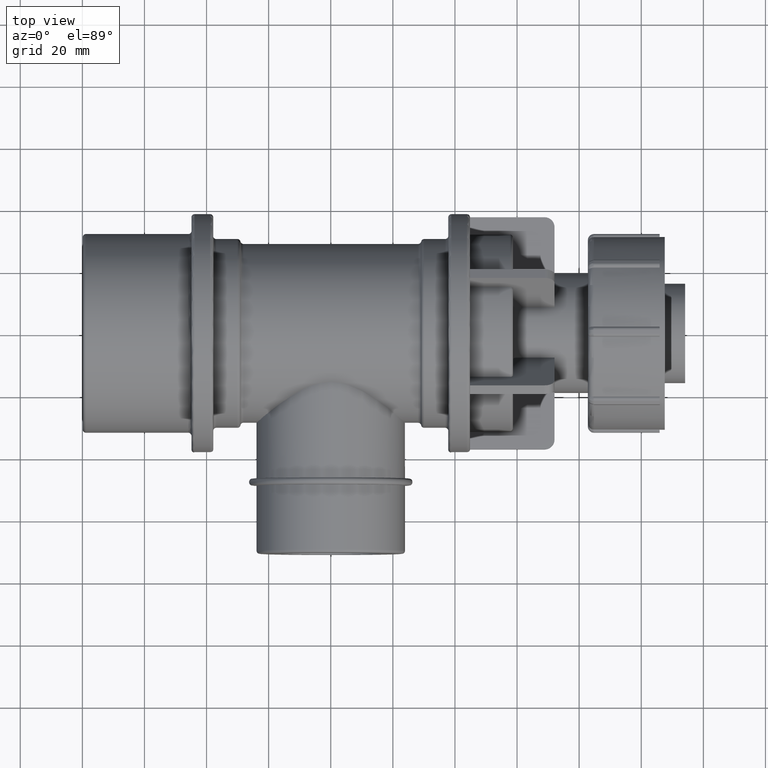
[diagram: clean part render]
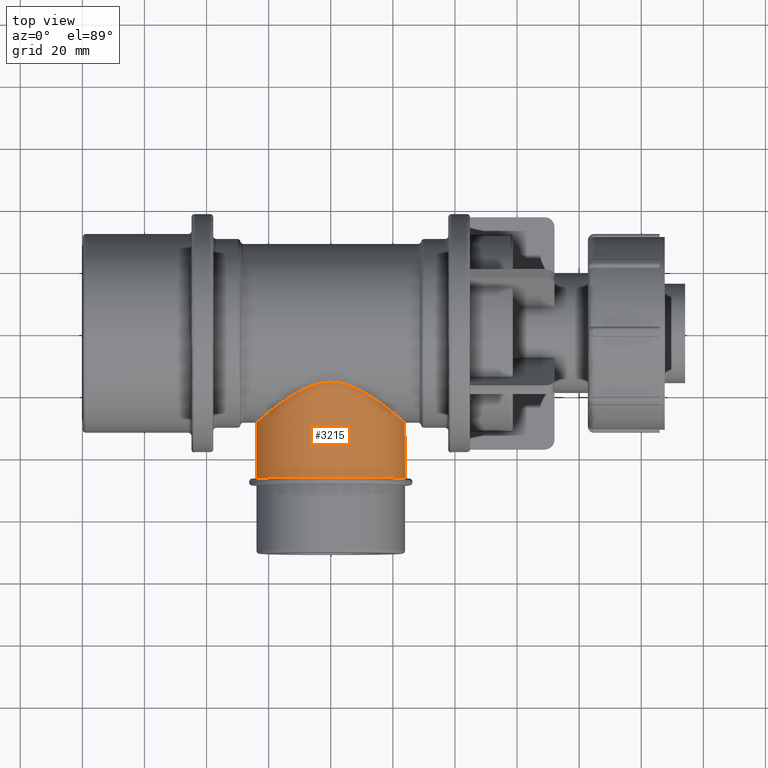
[diagram: same view with one face highlighted and labeled with its STEP entity id]
A machine part, top view. The second image highlights one B-rep face of the part: STEP entity #3215.
In plain terms, the highlighted cylindrical surface (bore or boss wall) has radius 23.9015 mm, axis along (-0, 1, 0).
Its self-contained STEP definition (entity closure, byte-faithful):
#707=CIRCLE('',#3595,23.9015);
#796=FACE_BOUND('',#1279,.T.);
#1008=FACE_OUTER_BOUND('',#1278,.T.);
#1278=EDGE_LOOP('',(#2932));
#1279=EDGE_LOOP('',(#2933));
#1332=B_SPLINE_CURVE_WITH_KNOTS('',3,(#6134,#6135,#6136,#6137,#6138,#6139,
#6140,#6141,#6142,#6143,#6144,#6145,#6146,#6147,#6148,#6149,#6150,#6151,
#6152,#6153,#6154,#6155,#6156,#6157,#6158,#6159,#6160,#6161,#6162,#6163,
#6164,#6165,#6166,#6167,#6168,#6169,#6170,#6171,#6172,#6173,#6174,#6175,
#6176,#6177,#6178,#6179,#6180,#6181,#6182,#6183,#6184,#6185,#6186,#6187,
#6188,#6189,#6190,#6191,#6192,#6193,#6194,#6195,#6196,#6197,#6198,#6199),
 .UNSPECIFIED.,.T.,.F.,(4,2,2,2,2,2,2,2,2,2,2,2,2,2,2,2,2,2,2,2,2,2,2,2,
2,2,2,2,2,2,2,2,4),(0.,0.496888757250964,0.993777514501928,1.49066627175289,
1.98755502900386,2.46480511420961,2.94205519941537,3.41930528462112,3.89655536982688,
4.37380545503264,4.85105554023839,5.32830562544415,5.8055557106499,6.30244446790087,
6.79933322515183,7.2962219824028,7.79311073965376,8.28999949690473,8.78688825415569,
9.28377701140665,9.78066576865762,10.2579158538634,10.7351659390691,11.2124160242749,
11.6896661094806,12.1669161946864,12.6441662798922,13.1214163650979,13.5986664503037,
14.0955552075546,14.5924439648056,15.0893327220566,15.5862214793075),
 .UNSPECIFIED.);
#1617=VERTEX_POINT('',#6133);
#1622=VERTEX_POINT('',#6260);
#2053=EDGE_CURVE('',#1617,#1617,#1332,.T.);
#2058=EDGE_CURVE('',#1622,#1622,#707,.T.);
#2932=ORIENTED_EDGE('',*,*,#2053,.T.);
#2933=ORIENTED_EDGE('',*,*,#2058,.T.);
#3003=CYLINDRICAL_SURFACE('',#3606,23.9015);
#3215=ADVANCED_FACE('',(#1008,#796),#3003,.T.);
#3595=AXIS2_PLACEMENT_3D('',#6261,#4530,#4531);
#3606=AXIS2_PLACEMENT_3D('',#6277,#4552,#4553);
#4530=DIRECTION('center_axis',(-1.22464679914735E-16,1.,0.));
#4531=DIRECTION('ref_axis',(1.,1.22464679914735E-16,0.));
#4552=DIRECTION('center_axis',(-1.22464679914735E-16,1.,0.));
#4553=DIRECTION('ref_axis',(-1.,0.,0.));
#6133=CARTESIAN_POINT('',(-1.38777878078145E-15,-16.0673052423236,23.9015));
#6134=CARTESIAN_POINT('Ctrl Pts',(-1.38777878078145E-15,-16.0673052423236,
23.9015));
#6135=CARTESIAN_POINT('Ctrl Pts',(-1.65629585750322,-16.0673052423236,23.9015));
#6136=CARTESIAN_POINT('Ctrl Pts',(-3.28134784419285,-16.3301432111204,23.7292431134868));
#6137=CARTESIAN_POINT('Ctrl Pts',(-6.41634969913079,-17.235889152592,23.0797461018147));
#6138=CARTESIAN_POINT('Ctrl Pts',(-7.92776502952321,-17.873658029155,22.6024238396384));
#6139=CARTESIAN_POINT('Ctrl Pts',(-10.800538178623,-19.3201926999153,21.3791344313432));
#6140=CARTESIAN_POINT('Ctrl Pts',(-12.163015793787,-20.128476956563,20.632005128629));
#6141=CARTESIAN_POINT('Ctrl Pts',(-14.6923173908287,-21.7504212077478,18.9143965856014));
#6142=CARTESIAN_POINT('Ctrl Pts',(-15.8586334861874,-22.5641049389787,17.9431919748732));
#6143=CARTESIAN_POINT('Ctrl Pts',(-17.901997683474,-24.0450422573589,15.8998277775865));
#6144=CARTESIAN_POINT('Ctrl Pts',(-18.8622530719548,-24.7718807288372,14.7590722326886));
#6145=CARTESIAN_POINT('Ctrl Pts',(-20.5875278695181,-26.1095344178567,12.2379941388599));
#6146=CARTESIAN_POINT('Ctrl Pts',(-21.3525570293388,-26.7199112852038,10.8574457035376));
#6147=CARTESIAN_POINT('Ctrl Pts',(-22.6038349009029,-27.7300435589006,7.92984833991263));
#6148=CARTESIAN_POINT('Ctrl Pts',(-23.0911793936635,-28.1305378100543,6.37932519002517));
#6149=CARTESIAN_POINT('Ctrl Pts',(-23.7401576446209,-28.665653257599,3.20987082458497));
#6150=CARTESIAN_POINT('Ctrl Pts',(-23.9015,-28.8,1.59083361735252));
#6151=CARTESIAN_POINT('Ctrl Pts',(-23.9015,-28.8,-1.59083361735252));
#6152=CARTESIAN_POINT('Ctrl Pts',(-23.7401576446209,-28.665653257599,-3.20987082458497));
#6153=CARTESIAN_POINT('Ctrl Pts',(-23.0911793936635,-28.1305378100543,-6.37932519002517));
#6154=CARTESIAN_POINT('Ctrl Pts',(-22.6038349009029,-27.7300435589006,-7.92984833991263));
#6155=CARTESIAN_POINT('Ctrl Pts',(-21.3525570293388,-26.7199112852038,-10.8574457035376));
#6156=CARTESIAN_POINT('Ctrl Pts',(-20.5875278695181,-26.1095344178567,-12.2379941388599));
#6157=CARTESIAN_POINT('Ctrl Pts',(-18.8622530719548,-24.7718807288372,-14.7590722326886));
#6158=CARTESIAN_POINT('Ctrl Pts',(-17.901997683474,-24.0450422573589,-15.8998277775865));
#6159=CARTESIAN_POINT('Ctrl Pts',(-15.8586334861874,-22.5641049389787,-17.9431919748732));
#6160=CARTESIAN_POINT('Ctrl Pts',(-14.6923173908287,-21.7504212077478,-18.9143965856014));
#6161=CARTESIAN_POINT('Ctrl Pts',(-12.163015793787,-20.128476956563,-20.632005128629));
#6162=CARTESIAN_POINT('Ctrl Pts',(-10.800538178623,-19.3201926999153,-21.3791344313432));
#6163=CARTESIAN_POINT('Ctrl Pts',(-7.92776502952321,-17.873658029155,-22.6024238396384));
#6164=CARTESIAN_POINT('Ctrl Pts',(-6.4163496991308,-17.235889152592,-23.0797461018147));
#6165=CARTESIAN_POINT('Ctrl Pts',(-3.28134784419285,-16.3301432111204,-23.7292431134868));
#6166=CARTESIAN_POINT('Ctrl Pts',(-1.65629585750321,-16.0673052423236,-23.9015));
#6167=CARTESIAN_POINT('Ctrl Pts',(1.65629585750321,-16.0673052423236,-23.9015));
#6168=CARTESIAN_POINT('Ctrl Pts',(3.28134784419285,-16.3301432111204,-23.7292431134868));
#6169=CARTESIAN_POINT('Ctrl Pts',(6.4163496991308,-17.235889152592,-23.0797461018147));
#6170=CARTESIAN_POINT('Ctrl Pts',(7.92776502952321,-17.873658029155,-22.6024238396384));
#6171=CARTESIAN_POINT('Ctrl Pts',(10.800538178623,-19.3201926999153,-21.3791344313432));
#6172=CARTESIAN_POINT('Ctrl Pts',(12.163015793787,-20.128476956563,-20.632005128629));
#6173=CARTESIAN_POINT('Ctrl Pts',(14.6923173908287,-21.7504212077478,-18.9143965856014));
#6174=CARTESIAN_POINT('Ctrl Pts',(15.8586334861874,-22.5641049389787,-17.9431919748732));
#6175=CARTESIAN_POINT('Ctrl Pts',(17.901997683474,-24.0450422573589,-15.8998277775866));
#6176=CARTESIAN_POINT('Ctrl Pts',(18.8622530719548,-24.7718807288372,-14.7590722326886));
#6177=CARTESIAN_POINT('Ctrl Pts',(20.5875278695181,-26.1095344178566,-12.2379941388599));
#6178=CARTESIAN_POINT('Ctrl Pts',(21.3525570293388,-26.7199112852038,-10.8574457035376));
#6179=CARTESIAN_POINT('Ctrl Pts',(22.6038349009029,-27.7300435589006,-7.92984833991263));
#6180=CARTESIAN_POINT('Ctrl Pts',(23.0911793936635,-28.1305378100543,-6.37932519002517));
#6181=CARTESIAN_POINT('Ctrl Pts',(23.7401576446209,-28.665653257599,-3.20987082458497));
#6182=CARTESIAN_POINT('Ctrl Pts',(23.9015,-28.8,-1.59083361735252));
#6183=CARTESIAN_POINT('Ctrl Pts',(23.9015,-28.8,1.59083361735251));
#6184=CARTESIAN_POINT('Ctrl Pts',(23.7401576446209,-28.665653257599,3.20987082458496));
#6185=CARTESIAN_POINT('Ctrl Pts',(23.0911793936635,-28.1305378100543,6.37932519002517));
#6186=CARTESIAN_POINT('Ctrl Pts',(22.6038349009029,-27.7300435589006,7.92984833991262));
#6187=CARTESIAN_POINT('Ctrl Pts',(21.3525570293388,-26.7199112852038,10.8574457035376));
#6188=CARTESIAN_POINT('Ctrl Pts',(20.5875278695181,-26.1095344178566,12.2379941388599));
#6189=CARTESIAN_POINT('Ctrl Pts',(18.8622530719548,-24.7718807288372,14.7590722326886));
#6190=CARTESIAN_POINT('Ctrl Pts',(17.901997683474,-24.0450422573589,15.8998277775865));
#6191=CARTESIAN_POINT('Ctrl Pts',(15.8586334861874,-22.5641049389787,17.9431919748732));
#6192=CARTESIAN_POINT('Ctrl Pts',(14.6923173908287,-21.7504212077478,18.9143965856014));
#6193=CARTESIAN_POINT('Ctrl Pts',(12.163015793787,-20.128476956563,20.632005128629));
#6194=CARTESIAN_POINT('Ctrl Pts',(10.800538178623,-19.3201926999153,21.3791344313432));
#6195=CARTESIAN_POINT('Ctrl Pts',(7.92776502952321,-17.873658029155,22.6024238396384));
#6196=CARTESIAN_POINT('Ctrl Pts',(6.4163496991308,-17.235889152592,23.0797461018147));
#6197=CARTESIAN_POINT('Ctrl Pts',(3.28134784419285,-16.3301432111204,23.7292431134868));
#6198=CARTESIAN_POINT('Ctrl Pts',(1.65629585750321,-16.0673052423236,23.9015));
#6199=CARTESIAN_POINT('Ctrl Pts',(-8.04911692853238E-15,-16.0673052423236,
23.9015));
#6260=CARTESIAN_POINT('',(-23.9015,-46.8,0.));
#6261=CARTESIAN_POINT('Origin',(5.73134702000961E-15,-46.8,0.));
#6277=CARTESIAN_POINT('Origin',(2.86484760079803E-15,-23.39325593953,0.));